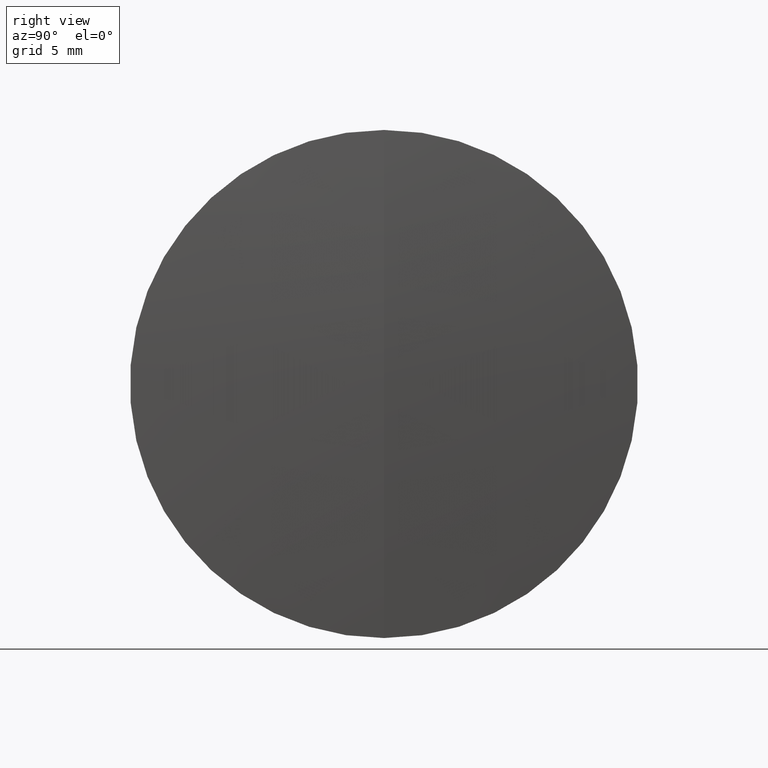
[diagram: clean part render]
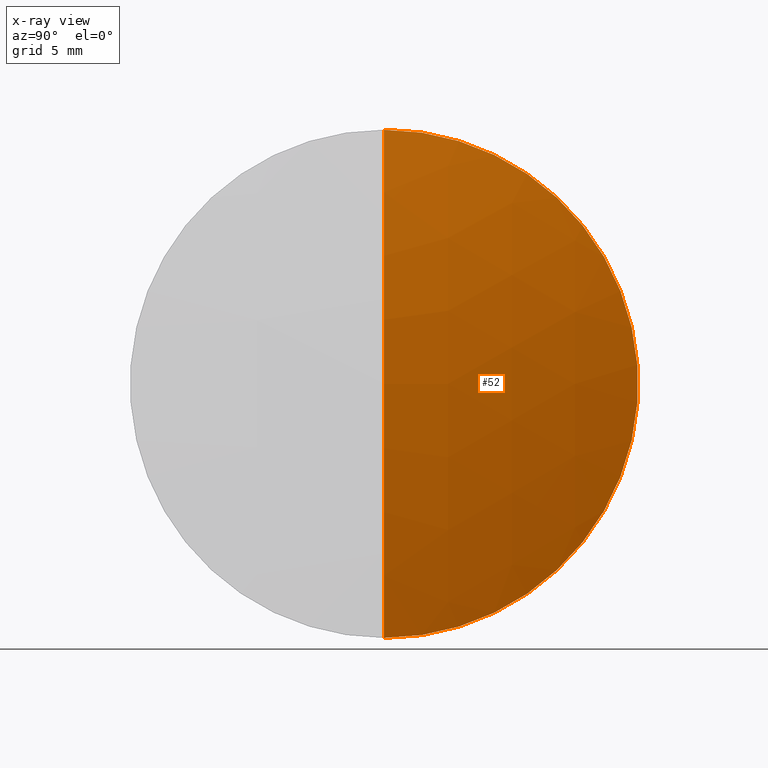
[diagram: x-ray — body ghosted, one internal face saturated and labeled with its STEP entity id]
A machine part, right view, then the same camera in x-ray: the body is ghosted and one INTERNAL B-rep face — a face not visible from any outside direction — is saturated and labeled: STEP entity #52.
In plain terms, the highlighted spherical surface has radius 47.022 mm.
Its self-contained STEP definition (entity closure, byte-faithful):
#2 = EDGE_CURVE ( 'NONE', #74, #143, #54, .T. ) ;
#10 = ORIENTED_EDGE ( 'NONE', *, *, #117, .T. ) ;
#19 = CARTESIAN_POINT ( 'NONE',  ( 61.90166897357483600, 0.0000000000000000000, 2.892819616631417200E-015 ) ) ;
#44 = DIRECTION ( 'NONE',  ( 0.0000000000000000000, 0.0000000000000000000, -1.000000000000000000 ) ) ;
#50 = CIRCLE ( 'NONE', #267, 47.02200000000010500 ) ;
#52 = ADVANCED_FACE ( 'NONE', ( #228 ), #80, .T. ) ;
#54 = CIRCLE ( 'NONE', #331, 12.49999999999998900 ) ;
#74 = VERTEX_POINT ( 'NONE', #97 ) ;
#80 = SPHERICAL_SURFACE ( 'NONE', #95, 47.02200000000010500 ) ;
#95 = AXIS2_PLACEMENT_3D ( 'NONE', #265, #317, #234 ) ;
#97 = CARTESIAN_POINT ( 'NONE',  ( 60.20977468710700000, 0.0000000000000000000, 12.49999999999998900 ) ) ;
#117 = EDGE_CURVE ( 'NONE', #136, #143, #50, .T. ) ;
#130 = DIRECTION ( 'NONE',  ( 0.0000000000000000000, 0.0000000000000000000, 1.000000000000000000 ) ) ;
#132 = CARTESIAN_POINT ( 'NONE',  ( 14.87966897357473400, 0.0000000000000000000, 1.355252715606880500E-017 ) ) ;
#136 = VERTEX_POINT ( 'NONE', #19 ) ;
#143 = VERTEX_POINT ( 'NONE', #181 ) ;
#158 = DIRECTION ( 'NONE',  ( -1.000000000000000000, -0.0000000000000000000, -0.0000000000000000000 ) ) ;
#163 = ORIENTED_EDGE ( 'NONE', *, *, #165, .F. ) ;
#165 = EDGE_CURVE ( 'NONE', #136, #74, #233, .T. ) ;
#181 = CARTESIAN_POINT ( 'NONE',  ( 60.20977468710700000, 1.530808498934190100E-015, -12.49999999999998900 ) ) ;
#193 = EDGE_LOOP ( 'NONE', ( #163, #10, #276 ) ) ;
#221 = AXIS2_PLACEMENT_3D ( 'NONE', #341, #297, #44 ) ;
#228 = FACE_OUTER_BOUND ( 'NONE', #193, .T. ) ;
#233 = CIRCLE ( 'NONE', #221, 47.02200000000010500 ) ;
#234 = DIRECTION ( 'NONE',  ( 0.0000000000000000000, 0.0000000000000000000, 1.000000000000000000 ) ) ;
#236 = DIRECTION ( 'NONE',  ( 0.0000000000000000000, -1.224646799147353200E-016, 1.000000000000000000 ) ) ;
#265 = CARTESIAN_POINT ( 'NONE',  ( 14.87966897357473400, 0.0000000000000000000, 1.355252715606880500E-017 ) ) ;
#267 = AXIS2_PLACEMENT_3D ( 'NONE', #132, #289, #236 ) ;
#270 = CARTESIAN_POINT ( 'NONE',  ( 60.20977468710700000, 0.0000000000000000000, 0.0000000000000000000 ) ) ;
#276 = ORIENTED_EDGE ( 'NONE', *, *, #2, .F. ) ;
#289 = DIRECTION ( 'NONE',  ( -0.0000000000000000000, 1.000000000000000000, 1.224646799147353200E-016 ) ) ;
#297 = DIRECTION ( 'NONE',  ( 0.0000000000000000000, -1.000000000000000000, 0.0000000000000000000 ) ) ;
#317 = DIRECTION ( 'NONE',  ( 0.0000000000000000000, 1.000000000000000000, 0.0000000000000000000 ) ) ;
#331 = AXIS2_PLACEMENT_3D ( 'NONE', #270, #158, #130 ) ;
#341 = CARTESIAN_POINT ( 'NONE',  ( 14.87966897357473400, 0.0000000000000000000, 1.355252715606880500E-017 ) ) ;